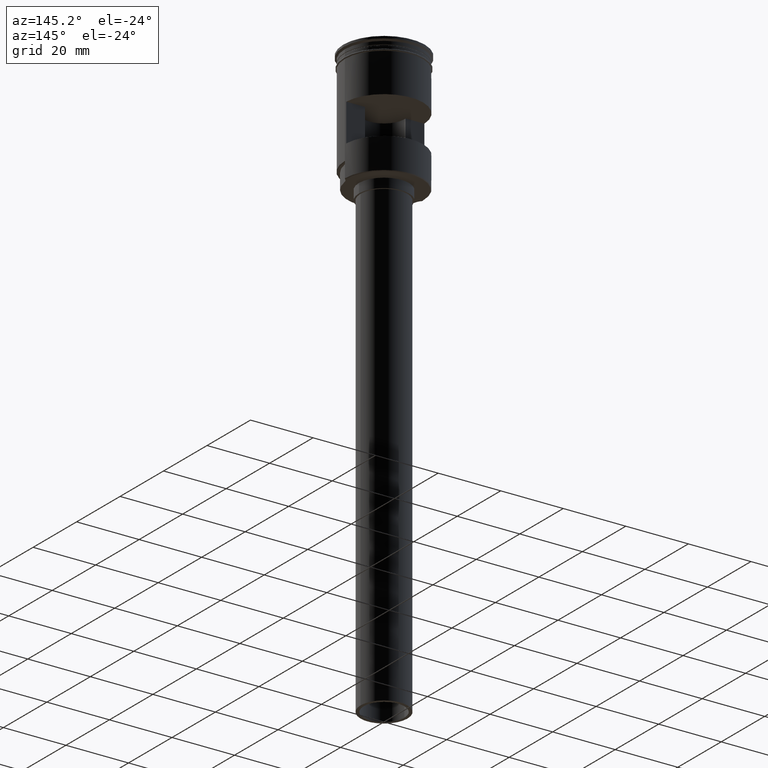
[diagram: clean part render]
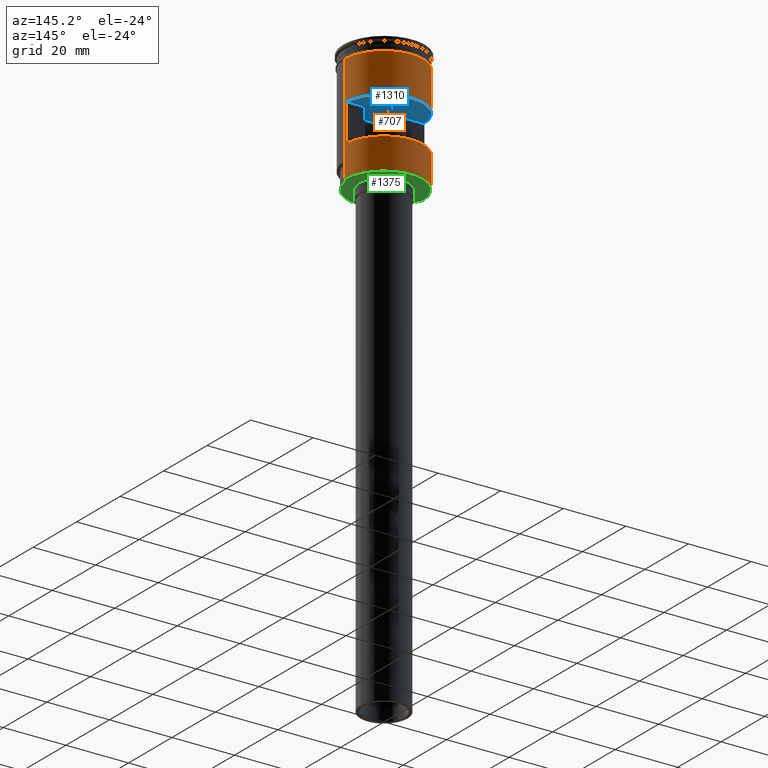
[diagram: same view with three faces highlighted in distinct colors, each labeled with its STEP entity id]
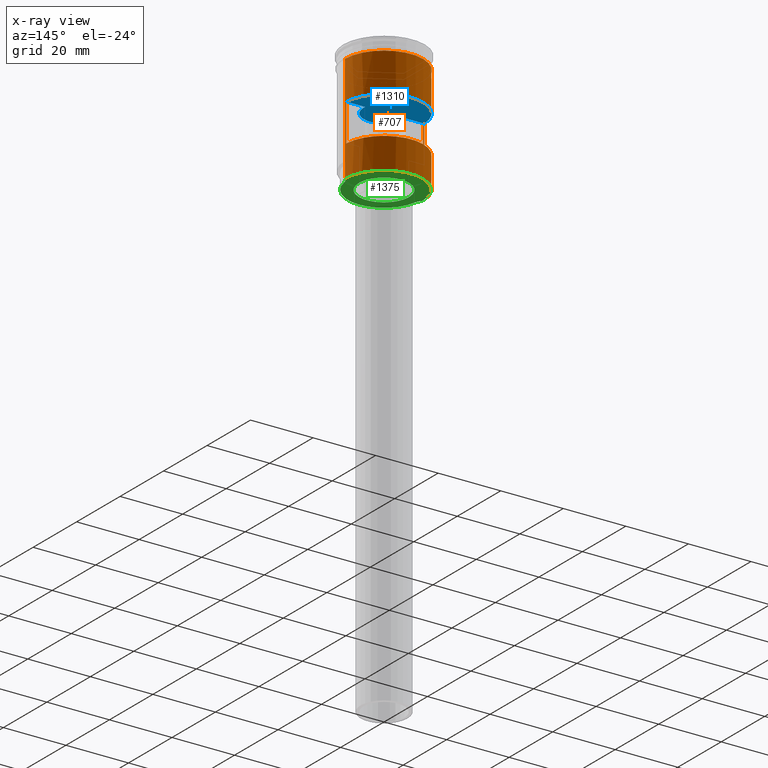
[diagram: x-ray of the same camera — body ghosted, the three highlighted faces saturated]
A machine part, auxiliary view with three faces highlighted in distinct colors.
The next image is the same camera in x-ray (body ghosted, the three faces saturated) — at least one of them is partly hidden behind the body in this view.
Their STEP definitions:

[orange] entity #707 — the highlighted cylindrical surface (partial cylindrical patch) has radius 12.5 mm, axis along (-0, -0, 1).
#4 = CARTESIAN_POINT ( 'NONE',  ( 0.000000000000000000, 0.000000000000000000, -16.50000000000000000 ) ) ;
#5 = EDGE_LOOP ( 'NONE', ( #1029, #1504, #1041, #1415, #553, #1003 ) ) ;
#10 = CARTESIAN_POINT ( 'NONE',  ( 12.48559169603106689, 0.6000000000000003109, -16.50000000000000000 ) ) ;
#39 = CYLINDRICAL_SURFACE ( 'NONE', #654, 12.49999999999999645 ) ;
#40 = AXIS2_PLACEMENT_3D ( 'NONE', #1257, #1233, #734 ) ;
#48 = FACE_OUTER_BOUND ( 'NONE', #5, .T. ) ;
#97 = EDGE_CURVE ( 'NONE', #813, #1098, #761, .T. ) ;
#101 = VERTEX_POINT ( 'NONE', #122 ) ;
#113 = VERTEX_POINT ( 'NONE', #10 ) ;
#118 = AXIS2_PLACEMENT_3D ( 'NONE', #4, #239, #586 ) ;
#122 = CARTESIAN_POINT ( 'NONE',  ( 12.48559169603106689, 0.6000000000000003109, -28.49999999999999645 ) ) ;
#158 = FACE_BOUND ( 'NONE', #1194, .T. ) ;
#190 = VECTOR ( 'NONE', #1002, 1000.000000000000000 ) ;
#199 = CARTESIAN_POINT ( 'NONE',  ( -12.49999999999999289, 0.000000000000000000, -38.50000000000000000 ) ) ;
#239 = DIRECTION ( 'NONE',  ( -0.000000000000000000, 0.000000000000000000, -1.000000000000000000 ) ) ;
#265 = CIRCLE ( 'NONE', #40, 12.49999999999999645 ) ;
#311 = CARTESIAN_POINT ( 'NONE',  ( -12.48559169603106689, 0.6000000000000003109, 0.000000000000000000 ) ) ;
#316 = CIRCLE ( 'NONE', #1567, 12.49999999999999822 ) ;
#320 = VERTEX_POINT ( 'NONE', #1432 ) ;
#328 = CARTESIAN_POINT ( 'NONE',  ( -12.48559169603106689, 0.6000000000000003109, -16.50000000000000000 ) ) ;
#336 = LINE ( 'NONE', #311, #1212 ) ;
#376 = EDGE_CURVE ( 'NONE', #1098, #972, #316, .T. ) ;
#379 = CARTESIAN_POINT ( 'NONE',  ( -12.50000000000000000, 1.530808498934191521E-15, -3.999999999999996447 ) ) ;
#423 = CIRCLE ( 'NONE', #118, 12.49999999999999645 ) ;
#458 = EDGE_CURVE ( 'NONE', #113, #101, #1227, .T. ) ;
#471 = EDGE_CURVE ( 'NONE', #101, #320, #265, .T. ) ;
#543 = EDGE_CURVE ( 'NONE', #1084, #813, #1284, .T. ) ;
#553 = ORIENTED_EDGE ( 'NONE', *, *, #543, .F. ) ;
#586 = DIRECTION ( 'NONE',  ( 1.000000000000000000, 0.000000000000000000, 0.000000000000000000 ) ) ;
#620 = CARTESIAN_POINT ( 'NONE',  ( 12.48559169603106689, 0.6000000000000003109, 0.000000000000000000 ) ) ;
#622 = VECTOR ( 'NONE', #1349, 1000.000000000000000 ) ;
#639 = CARTESIAN_POINT ( 'NONE',  ( 12.49999999999999289, 1.530808498934190732E-15, -38.50000000000000000 ) ) ;
#654 = AXIS2_PLACEMENT_3D ( 'NONE', #787, #671, #1046 ) ;
#667 = ORIENTED_EDGE ( 'NONE', *, *, #458, .F. ) ;
#671 = DIRECTION ( 'NONE',  ( -0.000000000000000000, -0.000000000000000000, 1.000000000000000000 ) ) ;
#707 = ADVANCED_FACE ( 'NONE', ( #158, #48 ), #39, .T. ) ;
#717 = EDGE_CURVE ( 'NONE', #1084, #1469, #1304, .T. ) ;
#734 = DIRECTION ( 'NONE',  ( -1.000000000000000000, 0.000000000000000000, 0.000000000000000000 ) ) ;
#743 = CARTESIAN_POINT ( 'NONE',  ( 12.49999999999999645, 0.000000000000000000, 0.000000000000000000 ) ) ;
#761 = LINE ( 'NONE', #743, #622 ) ;
#770 = CARTESIAN_POINT ( 'NONE',  ( 12.49999999999999822, 0.000000000000000000, -3.999999999999996447 ) ) ;
#787 = CARTESIAN_POINT ( 'NONE',  ( 0.000000000000000000, 0.000000000000000000, 0.000000000000000000 ) ) ;
#790 = VERTEX_POINT ( 'NONE', #1061 ) ;
#793 = CARTESIAN_POINT ( 'NONE',  ( 12.49999999999999645, 1.530808498934191127E-15, -33.29999999999998295 ) ) ;
#813 = VERTEX_POINT ( 'NONE', #793 ) ;
#850 = EDGE_CURVE ( 'NONE', #1469, #790, #1306, .T. ) ;
#887 = CARTESIAN_POINT ( 'NONE',  ( -12.49999999999999289, 0.000000000000000000, -38.29999999999996874 ) ) ;
#946 = DIRECTION ( 'NONE',  ( -1.000000000000000000, 0.000000000000000000, 0.000000000000000000 ) ) ;
#952 = DIRECTION ( 'NONE',  ( 0.000000000000000000, 0.000000000000000000, 1.000000000000000000 ) ) ;
#972 = VERTEX_POINT ( 'NONE', #379 ) ;
#986 = CARTESIAN_POINT ( 'NONE',  ( -12.49999999999999645, 1.530808498934191127E-15, 0.000000000000000000 ) ) ;
#990 = ORIENTED_EDGE ( 'NONE', *, *, #1175, .F. ) ;
#1002 = DIRECTION ( 'NONE',  ( 0.000000000000000000, 0.000000000000000000, -1.000000000000000000 ) ) ;
#1003 = ORIENTED_EDGE ( 'NONE', *, *, #717, .T. ) ;
#1029 = ORIENTED_EDGE ( 'NONE', *, *, #850, .T. ) ;
#1041 = ORIENTED_EDGE ( 'NONE', *, *, #376, .F. ) ;
#1044 = ORIENTED_EDGE ( 'NONE', *, *, #471, .F. ) ;
#1046 = DIRECTION ( 'NONE',  ( 1.000000000000000000, 0.000000000000000000, 0.000000000000000000 ) ) ;
#1061 = CARTESIAN_POINT ( 'NONE',  ( -12.49999999999999289, 0.000000000000000000, -33.29999999999998295 ) ) ;
#1084 = VERTEX_POINT ( 'NONE', #1173 ) ;
#1092 = CARTESIAN_POINT ( 'NONE',  ( 0.000000000000000000, 0.000000000000000000, -3.999999999999996447 ) ) ;
#1098 = VERTEX_POINT ( 'NONE', #770 ) ;
#1170 = VERTEX_POINT ( 'NONE', #328 ) ;
#1173 = CARTESIAN_POINT ( 'NONE',  ( 12.49999999999999289, 1.530808498934190732E-15, -38.29999999999996874 ) ) ;
#1175 = EDGE_CURVE ( 'NONE', #320, #1170, #336, .T. ) ;
#1194 = EDGE_LOOP ( 'NONE', ( #667, #1303, #990, #1044 ) ) ;
#1195 = CARTESIAN_POINT ( 'NONE',  ( 0.000000000000000000, 0.000000000000000000, -38.29999999999996874 ) ) ;
#1212 = VECTOR ( 'NONE', #1438, 1000.000000000000000 ) ;
#1227 = LINE ( 'NONE', #620, #190 ) ;
#1233 = DIRECTION ( 'NONE',  ( 0.000000000000000000, 0.000000000000000000, 1.000000000000000000 ) ) ;
#1235 = VECTOR ( 'NONE', #1481, 1000.000000000000000 ) ;
#1257 = CARTESIAN_POINT ( 'NONE',  ( 0.000000000000000000, 0.000000000000000000, -28.49999999999999645 ) ) ;
#1284 = LINE ( 'NONE', #639, #1486 ) ;
#1303 = ORIENTED_EDGE ( 'NONE', *, *, #1395, .F. ) ;
#1304 = CIRCLE ( 'NONE', #1569, 12.49999999999999645 ) ;
#1306 = LINE ( 'NONE', #199, #1437 ) ;
#1343 = DIRECTION ( 'NONE',  ( -0.000000000000000000, -0.000000000000000000, 1.000000000000000000 ) ) ;
#1349 = DIRECTION ( 'NONE',  ( -0.000000000000000000, -0.000000000000000000, 1.000000000000000000 ) ) ;
#1395 = EDGE_CURVE ( 'NONE', #1170, #113, #423, .T. ) ;
#1399 = EDGE_CURVE ( 'NONE', #790, #972, #1459, .T. ) ;
#1415 = ORIENTED_EDGE ( 'NONE', *, *, #97, .F. ) ;
#1425 = DIRECTION ( 'NONE',  ( -0.000000000000000000, -0.000000000000000000, 1.000000000000000000 ) ) ;
#1432 = CARTESIAN_POINT ( 'NONE',  ( -12.48559169603106689, 0.6000000000000003109, -28.49999999999999645 ) ) ;
#1437 = VECTOR ( 'NONE', #1572, 1000.000000000000000 ) ;
#1438 = DIRECTION ( 'NONE',  ( -0.000000000000000000, -0.000000000000000000, 1.000000000000000000 ) ) ;
#1459 = LINE ( 'NONE', #986, #1235 ) ;
#1469 = VERTEX_POINT ( 'NONE', #887 ) ;
#1481 = DIRECTION ( 'NONE',  ( -0.000000000000000000, -0.000000000000000000, 1.000000000000000000 ) ) ;
#1486 = VECTOR ( 'NONE', #1425, 1000.000000000000000 ) ;
#1504 = ORIENTED_EDGE ( 'NONE', *, *, #1399, .T. ) ;
#1567 = AXIS2_PLACEMENT_3D ( 'NONE', #1092, #1343, #1587 ) ;
#1569 = AXIS2_PLACEMENT_3D ( 'NONE', #1195, #952, #946 ) ;
#1572 = DIRECTION ( 'NONE',  ( -0.000000000000000000, -0.000000000000000000, 1.000000000000000000 ) ) ;
#1587 = DIRECTION ( 'NONE',  ( 1.000000000000000000, 0.000000000000000000, 0.000000000000000000 ) ) ;

[blue] entity #1310 — the highlighted planar face has unit normal (0, -0, 1).
#4 = CARTESIAN_POINT ( 'NONE',  ( 0.000000000000000000, 0.000000000000000000, -16.50000000000000000 ) ) ;
#10 = CARTESIAN_POINT ( 'NONE',  ( 12.48559169603106689, 0.6000000000000003109, -16.50000000000000000 ) ) ;
#37 = VECTOR ( 'NONE', #922, 1000.000000000000000 ) ;
#49 = LINE ( 'NONE', #782, #37 ) ;
#96 = DIRECTION ( 'NONE',  ( 1.000000000000000000, 0.000000000000000000, -0.000000000000000000 ) ) ;
#113 = VERTEX_POINT ( 'NONE', #10 ) ;
#118 = AXIS2_PLACEMENT_3D ( 'NONE', #4, #239, #586 ) ;
#127 = CARTESIAN_POINT ( 'NONE',  ( 0.000000000000000000, 0.000000000000000000, -16.50000000000000000 ) ) ;
#140 = EDGE_CURVE ( 'NONE', #482, #113, #49, .T. ) ;
#165 = AXIS2_PLACEMENT_3D ( 'NONE', #893, #1426, #520 ) ;
#167 = CIRCLE ( 'NONE', #367, 6.500000000000000888 ) ;
#173 = EDGE_CURVE ( 'NONE', #482, #1091, #650, .T. ) ;
#239 = DIRECTION ( 'NONE',  ( -0.000000000000000000, 0.000000000000000000, -1.000000000000000000 ) ) ;
#328 = CARTESIAN_POINT ( 'NONE',  ( -12.48559169603106689, 0.6000000000000003109, -16.50000000000000000 ) ) ;
#367 = AXIS2_PLACEMENT_3D ( 'NONE', #127, #1115, #1123 ) ;
#386 = CARTESIAN_POINT ( 'NONE',  ( -13.00000000000000178, 0.6000000000000003109, -16.50000000000000000 ) ) ;
#405 = DIRECTION ( 'NONE',  ( 1.000000000000000000, 0.000000000000000000, 0.000000000000000000 ) ) ;
#422 = VERTEX_POINT ( 'NONE', #632 ) ;
#423 = CIRCLE ( 'NONE', #118, 12.49999999999999645 ) ;
#482 = VERTEX_POINT ( 'NONE', #1604 ) ;
#512 = EDGE_CURVE ( 'NONE', #1091, #422, #167, .T. ) ;
#520 = DIRECTION ( 'NONE',  ( 1.000000000000000000, 0.000000000000000000, 0.000000000000000000 ) ) ;
#556 = EDGE_LOOP ( 'NONE', ( #1120, #1434, #749, #1545, #1348, #1436 ) ) ;
#586 = DIRECTION ( 'NONE',  ( 1.000000000000000000, 0.000000000000000000, 0.000000000000000000 ) ) ;
#632 = CARTESIAN_POINT ( 'NONE',  ( -6.500000000000000888, 0.000000000000000000, -16.50000000000000000 ) ) ;
#650 = CIRCLE ( 'NONE', #165, 6.500000000000000888 ) ;
#656 = AXIS2_PLACEMENT_3D ( 'NONE', #1406, #1401, #405 ) ;
#749 = ORIENTED_EDGE ( 'NONE', *, *, #512, .T. ) ;
#769 = DIRECTION ( 'NONE',  ( 1.000000000000000000, -0.000000000000000000, -0.000000000000000000 ) ) ;
#782 = CARTESIAN_POINT ( 'NONE',  ( -13.00000000000000178, 0.6000000000000003109, -16.50000000000000000 ) ) ;
#803 = CARTESIAN_POINT ( 'NONE',  ( -6.472248450113763596, 0.6000000000000004219, -16.50000000000000000 ) ) ;
#845 = VERTEX_POINT ( 'NONE', #803 ) ;
#848 = CARTESIAN_POINT ( 'NONE',  ( -13.00000000000000178, 0.6000000000000003109, -16.50000000000000000 ) ) ;
#893 = CARTESIAN_POINT ( 'NONE',  ( 0.000000000000000000, 0.000000000000000000, -16.50000000000000000 ) ) ;
#922 = DIRECTION ( 'NONE',  ( 1.000000000000000000, -0.000000000000000000, -0.000000000000000000 ) ) ;
#925 = FACE_OUTER_BOUND ( 'NONE', #556, .T. ) ;
#968 = VECTOR ( 'NONE', #769, 1000.000000000000000 ) ;
#1045 = AXIS2_PLACEMENT_3D ( 'NONE', #848, #1246, #96 ) ;
#1067 = EDGE_CURVE ( 'NONE', #422, #845, #1542, .T. ) ;
#1091 = VERTEX_POINT ( 'NONE', #1288 ) ;
#1115 = DIRECTION ( 'NONE',  ( -0.000000000000000000, 0.000000000000000000, -1.000000000000000000 ) ) ;
#1120 = ORIENTED_EDGE ( 'NONE', *, *, #140, .F. ) ;
#1123 = DIRECTION ( 'NONE',  ( 1.000000000000000000, 0.000000000000000000, 0.000000000000000000 ) ) ;
#1170 = VERTEX_POINT ( 'NONE', #328 ) ;
#1246 = DIRECTION ( 'NONE',  ( 0.000000000000000000, -0.000000000000000000, 1.000000000000000000 ) ) ;
#1288 = CARTESIAN_POINT ( 'NONE',  ( 6.500000000000000888, 7.960204194457794491E-16, -16.50000000000000000 ) ) ;
#1310 = ADVANCED_FACE ( 'NONE', ( #925 ), #1350, .F. ) ;
#1348 = ORIENTED_EDGE ( 'NONE', *, *, #1500, .F. ) ;
#1350 = PLANE ( 'NONE',  #1045 ) ;
#1392 = LINE ( 'NONE', #386, #968 ) ;
#1395 = EDGE_CURVE ( 'NONE', #1170, #113, #423, .T. ) ;
#1401 = DIRECTION ( 'NONE',  ( -0.000000000000000000, 0.000000000000000000, -1.000000000000000000 ) ) ;
#1406 = CARTESIAN_POINT ( 'NONE',  ( 0.000000000000000000, 0.000000000000000000, -16.50000000000000000 ) ) ;
#1426 = DIRECTION ( 'NONE',  ( -0.000000000000000000, 0.000000000000000000, -1.000000000000000000 ) ) ;
#1434 = ORIENTED_EDGE ( 'NONE', *, *, #173, .T. ) ;
#1436 = ORIENTED_EDGE ( 'NONE', *, *, #1395, .T. ) ;
#1500 = EDGE_CURVE ( 'NONE', #1170, #845, #1392, .T. ) ;
#1542 = CIRCLE ( 'NONE', #656, 6.500000000000000888 ) ;
#1545 = ORIENTED_EDGE ( 'NONE', *, *, #1067, .T. ) ;
#1604 = CARTESIAN_POINT ( 'NONE',  ( 6.472248450113761820, 0.6000000000000003109, -16.50000000000000000 ) ) ;

[green] entity #1375 — the highlighted planar face has unit normal (0, 0, -1).
#6 = EDGE_CURVE ( 'NONE', #1065, #1386, #1482, .T. ) ;
#17 = ORIENTED_EDGE ( 'NONE', *, *, #194, .T. ) ;
#22 = CARTESIAN_POINT ( 'NONE',  ( 11.39766701030927543, -1.869675566002708900, -38.50000000000000000 ) ) ;
#46 = EDGE_CURVE ( 'NONE', #1386, #1065, #111, .T. ) ;
#103 = CARTESIAN_POINT ( 'NONE',  ( -7.179049999999997489, -1.177652791573134738, -38.50000000000000000 ) ) ;
#111 = CIRCLE ( 'NONE', #908, 8.000000000000000000 ) ;
#136 = DIRECTION ( 'NONE',  ( 0.000000000000000000, 0.000000000000000000, -1.000000000000000000 ) ) ;
#160 = CARTESIAN_POINT ( 'NONE',  ( 0.000000000000000000, 0.000000000000000000, -38.50000000000000000 ) ) ;
#174 = CARTESIAN_POINT ( 'NONE',  ( -8.000000000000000000, 9.797174393178825657E-16, -38.50000000000000000 ) ) ;
#176 = DIRECTION ( 'NONE',  ( 0.000000000000000000, 0.000000000000000000, -1.000000000000000000 ) ) ;
#181 = CARTESIAN_POINT ( 'NONE',  ( 0.000000000000000000, 0.000000000000000000, -38.50000000000000000 ) ) ;
#185 = EDGE_CURVE ( 'NONE', #957, #1199, #1069, .T. ) ;
#194 = EDGE_CURVE ( 'NONE', #1199, #258, #570, .T. ) ;
#224 = DIRECTION ( 'NONE',  ( -1.000000000000000000, 0.000000000000000000, 0.000000000000000000 ) ) ;
#229 = ORIENTED_EDGE ( 'NONE', *, *, #689, .T. ) ;
#237 = DIRECTION ( 'NONE',  ( -1.000000000000000000, 0.000000000000000000, 0.000000000000000000 ) ) ;
#253 = DIRECTION ( 'NONE',  ( 0.000000000000000000, 0.000000000000000000, -1.000000000000000000 ) ) ;
#258 = VERTEX_POINT ( 'NONE', #408 ) ;
#263 = AXIS2_PLACEMENT_3D ( 'NONE', #391, #136, #237 ) ;
#289 = AXIS2_PLACEMENT_3D ( 'NONE', #160, #176, #1278 ) ;
#301 = VERTEX_POINT ( 'NONE', #828 ) ;
#345 = AXIS2_PLACEMENT_3D ( 'NONE', #720, #835, #224 ) ;
#364 = AXIS2_PLACEMENT_3D ( 'NONE', #181, #673, #403 ) ;
#391 = CARTESIAN_POINT ( 'NONE',  ( 0.000000000000000000, 0.000000000000000000, -38.50000000000000000 ) ) ;
#396 = CIRCLE ( 'NONE', #1124, 2.999999999999997335 ) ;
#403 = DIRECTION ( 'NONE',  ( -1.000000000000000000, 0.000000000000000000, 0.000000000000000000 ) ) ;
#408 = CARTESIAN_POINT ( 'NONE',  ( 12.29877269673719198, -0.1737531409537070581, -38.50000000000000000 ) ) ;
#434 = ORIENTED_EDGE ( 'NONE', *, *, #185, .T. ) ;
#450 = CIRCLE ( 'NONE', #345, 2.999999999999999112 ) ;
#463 = CARTESIAN_POINT ( 'NONE',  ( 12.29999999999997762, 0.000000000000000000, -38.50000000000000000 ) ) ;
#477 = PLANE ( 'NONE',  #1103 ) ;
#505 = CIRCLE ( 'NONE', #1571, 11.54999999999999716 ) ;
#569 = EDGE_CURVE ( 'NONE', #916, #258, #396, .T. ) ;
#570 = CIRCLE ( 'NONE', #289, 12.29999999999997762 ) ;
#611 = CARTESIAN_POINT ( 'NONE',  ( -12.29999999999997762, 1.518562030942716389E-15, -38.50000000000000000 ) ) ;
#641 = CARTESIAN_POINT ( 'NONE',  ( 0.000000000000000000, 0.000000000000000000, -38.50000000000000000 ) ) ;
#646 = VERTEX_POINT ( 'NONE', #921 ) ;
#664 = DIRECTION ( 'NONE',  ( -1.000000000000000000, 0.000000000000000000, 0.000000000000000000 ) ) ;
#673 = DIRECTION ( 'NONE',  ( 0.000000000000000000, 0.000000000000000000, -1.000000000000000000 ) ) ;
#676 = EDGE_LOOP ( 'NONE', ( #801, #229, #434, #17, #1405, #1556 ) ) ;
#689 = EDGE_CURVE ( 'NONE', #646, #957, #1358, .T. ) ;
#720 = CARTESIAN_POINT ( 'NONE',  ( -14.35809999999999498, -2.355305583146269477, -38.50000000000000000 ) ) ;
#745 = CARTESIAN_POINT ( 'NONE',  ( 8.000000000000000000, 0.000000000000000000, -38.50000000000000000 ) ) ;
#756 = DIRECTION ( 'NONE',  ( 0.000000000000000000, 0.000000000000000000, -1.000000000000000000 ) ) ;
#766 = CARTESIAN_POINT ( 'NONE',  ( 0.000000000000000000, 0.000000000000000000, -38.50000000000000000 ) ) ;
#801 = ORIENTED_EDGE ( 'NONE', *, *, #1421, .F. ) ;
#828 = CARTESIAN_POINT ( 'NONE',  ( -11.39766701030927543, -1.869675566002713563, -38.50000000000000000 ) ) ;
#832 = EDGE_LOOP ( 'NONE', ( #981, #1085 ) ) ;
#835 = DIRECTION ( 'NONE',  ( 0.000000000000000000, 0.000000000000000000, -1.000000000000000000 ) ) ;
#908 = AXIS2_PLACEMENT_3D ( 'NONE', #641, #1473, #974 ) ;
#916 = VERTEX_POINT ( 'NONE', #22 ) ;
#921 = CARTESIAN_POINT ( 'NONE',  ( -12.29877269673719198, -0.1737531409537070581, -38.50000000000000000 ) ) ;
#957 = VERTEX_POINT ( 'NONE', #611 ) ;
#974 = DIRECTION ( 'NONE',  ( -1.000000000000000000, 0.000000000000000000, 0.000000000000000000 ) ) ;
#981 = ORIENTED_EDGE ( 'NONE', *, *, #46, .F. ) ;
#1009 = CARTESIAN_POINT ( 'NONE',  ( 0.000000000000000000, 0.000000000000000000, -38.50000000000000000 ) ) ;
#1026 = DIRECTION ( 'NONE',  ( 0.000000000000000000, 0.000000000000000000, -1.000000000000000000 ) ) ;
#1034 = DIRECTION ( 'NONE',  ( 0.000000000000000000, 0.000000000000000000, -1.000000000000000000 ) ) ;
#1065 = VERTEX_POINT ( 'NONE', #174 ) ;
#1069 = CIRCLE ( 'NONE', #364, 12.29999999999997762 ) ;
#1085 = ORIENTED_EDGE ( 'NONE', *, *, #6, .F. ) ;
#1103 = AXIS2_PLACEMENT_3D ( 'NONE', #103, #253, #1600 ) ;
#1124 = AXIS2_PLACEMENT_3D ( 'NONE', #1290, #1034, #664 ) ;
#1136 = EDGE_CURVE ( 'NONE', #916, #301, #505, .T. ) ;
#1199 = VERTEX_POINT ( 'NONE', #463 ) ;
#1239 = FACE_BOUND ( 'NONE', #832, .T. ) ;
#1259 = AXIS2_PLACEMENT_3D ( 'NONE', #766, #1026, #1522 ) ;
#1278 = DIRECTION ( 'NONE',  ( -1.000000000000000000, 0.000000000000000000, 0.000000000000000000 ) ) ;
#1290 = CARTESIAN_POINT ( 'NONE',  ( 14.35809999999999498, -2.355305583146269477, -38.50000000000000000 ) ) ;
#1358 = CIRCLE ( 'NONE', #1259, 12.29999999999997762 ) ;
#1373 = FACE_OUTER_BOUND ( 'NONE', #676, .T. ) ;
#1375 = ADVANCED_FACE ( 'NONE', ( #1239, #1373 ), #477, .T. ) ;
#1386 = VERTEX_POINT ( 'NONE', #745 ) ;
#1405 = ORIENTED_EDGE ( 'NONE', *, *, #569, .F. ) ;
#1421 = EDGE_CURVE ( 'NONE', #646, #301, #450, .T. ) ;
#1473 = DIRECTION ( 'NONE',  ( 0.000000000000000000, 0.000000000000000000, -1.000000000000000000 ) ) ;
#1482 = CIRCLE ( 'NONE', #263, 8.000000000000000000 ) ;
#1503 = DIRECTION ( 'NONE',  ( -1.000000000000000000, 0.000000000000000000, 0.000000000000000000 ) ) ;
#1522 = DIRECTION ( 'NONE',  ( -1.000000000000000000, 0.000000000000000000, 0.000000000000000000 ) ) ;
#1556 = ORIENTED_EDGE ( 'NONE', *, *, #1136, .T. ) ;
#1571 = AXIS2_PLACEMENT_3D ( 'NONE', #1009, #756, #1503 ) ;
#1600 = DIRECTION ( 'NONE',  ( -1.000000000000000000, 0.000000000000000000, -0.000000000000000000 ) ) ;